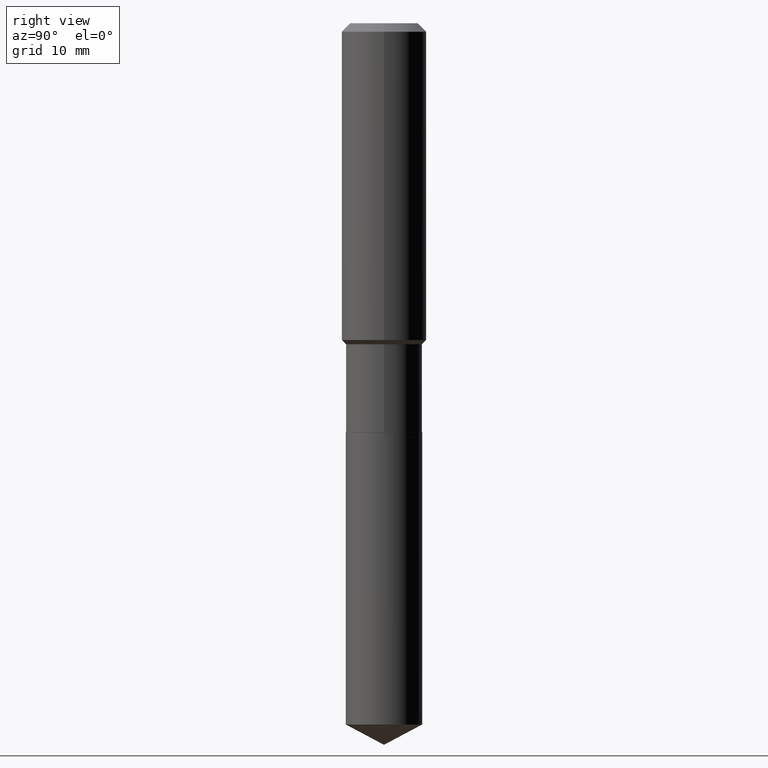
[diagram: clean part render]
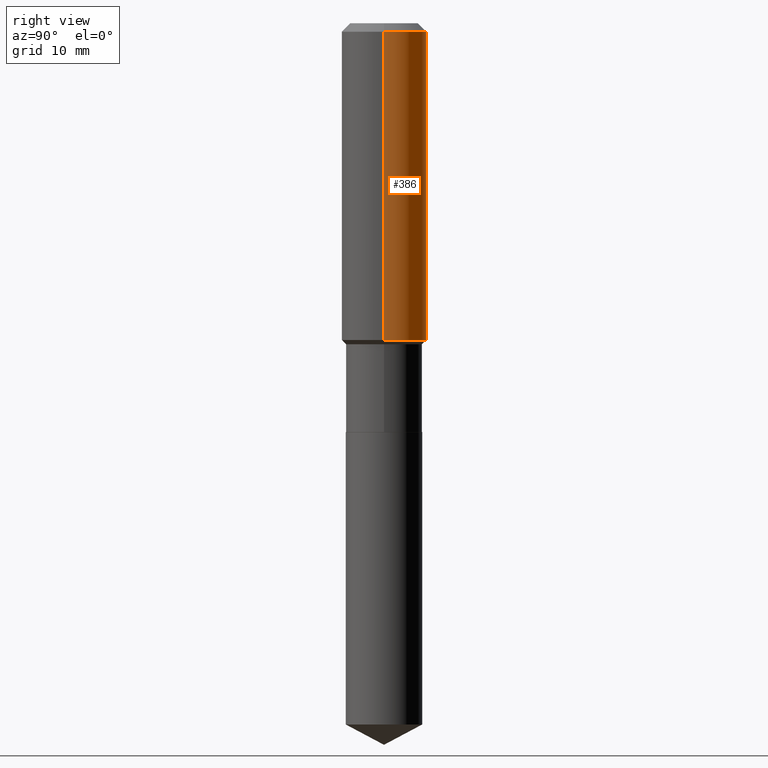
[diagram: same view with one face highlighted and labeled with its STEP entity id]
A machine part, right view. The second image highlights one B-rep face of the part: STEP entity #386.
In plain terms, the highlighted cylindrical surface (partial cylindrical patch) has radius 5.9995 mm, axis along (-0, 0, 1).
Its self-contained STEP definition (entity closure, byte-faithful):
#4 = DIRECTION ( 'NONE',  ( 1.000000000000000000, -6.982962677686266711E-15, 0.000000000000000000 ) ) ;
#16 = AXIS2_PLACEMENT_3D ( 'NONE', #426, #127, #4 ) ;
#20 = EDGE_CURVE ( 'NONE', #97, #92, #176, .T. ) ;
#39 = ORIENTED_EDGE ( 'NONE', *, *, #272, .F. ) ;
#46 = AXIS2_PLACEMENT_3D ( 'NONE', #374, #430, #234 ) ;
#52 = ORIENTED_EDGE ( 'NONE', *, *, #125, .T. ) ;
#84 = EDGE_CURVE ( 'NONE', #118, #262, #160, .T. ) ;
#92 = VERTEX_POINT ( 'NONE', #170 ) ;
#97 = VERTEX_POINT ( 'NONE', #390 ) ;
#99 = VECTOR ( 'NONE', #459, 39.37007874015748143 ) ;
#118 = VERTEX_POINT ( 'NONE', #280 ) ;
#125 = EDGE_CURVE ( 'NONE', #262, #92, #208, .T. ) ;
#127 = DIRECTION ( 'NONE',  ( -2.445468806185136597E-29, 3.491481338843145583E-15, 1.000000000000000000 ) ) ;
#131 = DIRECTION ( 'NONE',  ( -2.445468806185136597E-29, 3.491481338843145583E-15, 1.000000000000000000 ) ) ;
#160 = CIRCLE ( 'NONE', #220, 0.2362000000000002153 ) ;
#169 = FACE_OUTER_BOUND ( 'NONE', #327, .T. ) ;
#170 = CARTESIAN_POINT ( 'NONE',  ( -0.2361999999999999933, -1.481733073481408203E-15, -0.04724000000000028177 ) ) ;
#176 = CIRCLE ( 'NONE', #16, 0.2361999999999999933 ) ;
#204 = CARTESIAN_POINT ( 'NONE',  ( 0.2362000000000001043, -1.649375784469496920E-15, 1.151752954443000508E-29 ) ) ;
#206 = DIRECTION ( 'NONE',  ( -2.445468806185136877E-29, 3.491481338843145188E-15, 1.000000000000000000 ) ) ;
#207 = DIRECTION ( 'NONE',  ( 1.000000000000000000, -6.982962677686266711E-15, 0.000000000000000000 ) ) ;
#208 = LINE ( 'NONE', #351, #99 ) ;
#215 = CYLINDRICAL_SURFACE ( 'NONE', #46, 0.2362000000000001043 ) ;
#220 = AXIS2_PLACEMENT_3D ( 'NONE', #345, #131, #207 ) ;
#221 = ORIENTED_EDGE ( 'NONE', *, *, #20, .F. ) ;
#227 = VECTOR ( 'NONE', #206, 39.37007874015748143 ) ;
#234 = DIRECTION ( 'NONE',  ( 1.000000000000000000, -6.982962677686266711E-15, 4.876176775795935793E-29 ) ) ;
#243 = CARTESIAN_POINT ( 'NONE',  ( -0.2362000000000002153, -4.476830510381222280E-15, -1.762899999999999689 ) ) ;
#262 = VERTEX_POINT ( 'NONE', #243 ) ;
#272 = EDGE_CURVE ( 'NONE', #118, #97, #392, .T. ) ;
#280 = CARTESIAN_POINT ( 'NONE',  ( 0.2362000000000002153, -7.804508236716077566E-15, -1.762899999999999689 ) ) ;
#327 = EDGE_LOOP ( 'NONE', ( #412, #52, #221, #39 ) ) ;
#345 = CARTESIAN_POINT ( 'NONE',  ( 4.311116958423776372E-29, -6.155132452246580252E-15, -1.762899999999999689 ) ) ;
#351 = CARTESIAN_POINT ( 'NONE',  ( -0.2362000000000001043, 1.678301941865357380E-15, -1.161852468318209317E-29 ) ) ;
#374 = CARTESIAN_POINT ( 'NONE',  ( 0.000000000000000000, 0.000000000000000000, 0.000000000000000000 ) ) ;
#386 = ADVANCED_FACE ( 'NONE', ( #169 ), #215, .T. ) ;
#390 = CARTESIAN_POINT ( 'NONE',  ( 0.2361999999999999933, -1.814313362916447440E-15, -0.04724000000000028177 ) ) ;
#392 = LINE ( 'NONE', #204, #227 ) ;
#412 = ORIENTED_EDGE ( 'NONE', *, *, #84, .T. ) ;
#426 = CARTESIAN_POINT ( 'NONE',  ( 1.155239464041865506E-30, -1.649375784469511859E-16, -0.04724000000000028177 ) ) ;
#430 = DIRECTION ( 'NONE',  ( -2.445468806185136597E-29, 3.491481338843145583E-15, 1.000000000000000000 ) ) ;
#459 = DIRECTION ( 'NONE',  ( -2.445468806185136877E-29, 3.491481338843145188E-15, 1.000000000000000000 ) ) ;